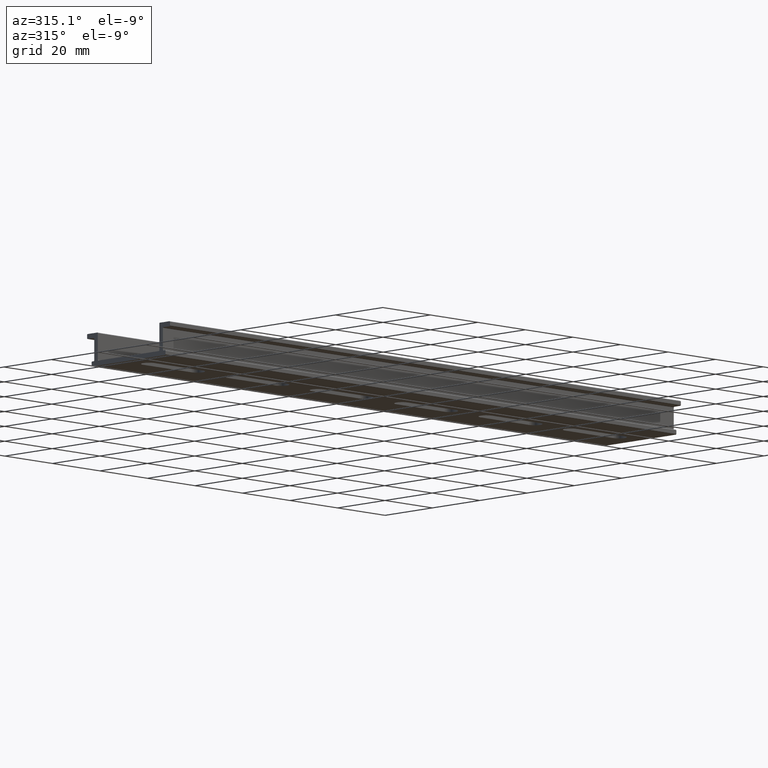
[diagram: clean part render]
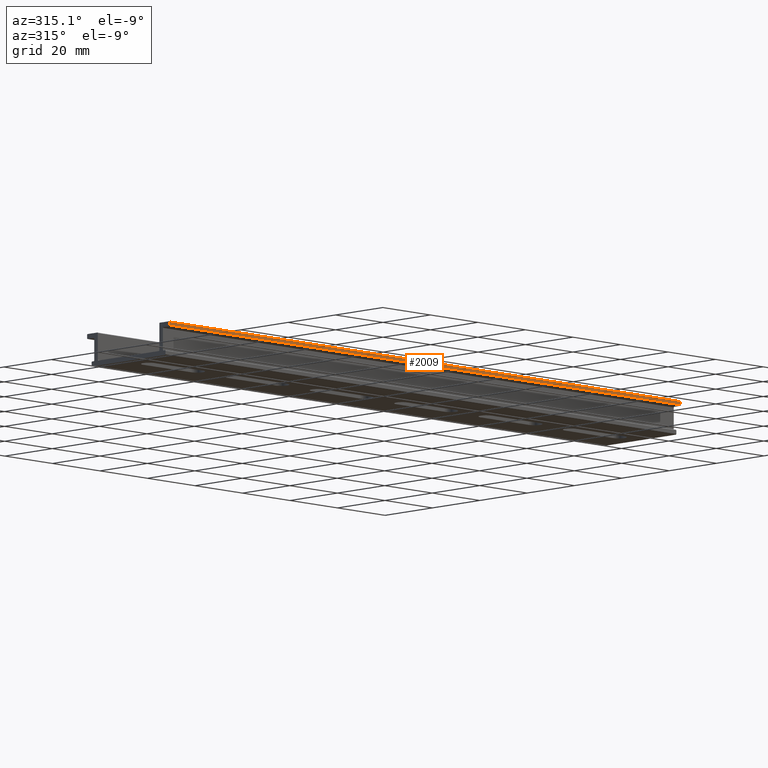
[diagram: same view with one face highlighted and labeled with its STEP entity id]
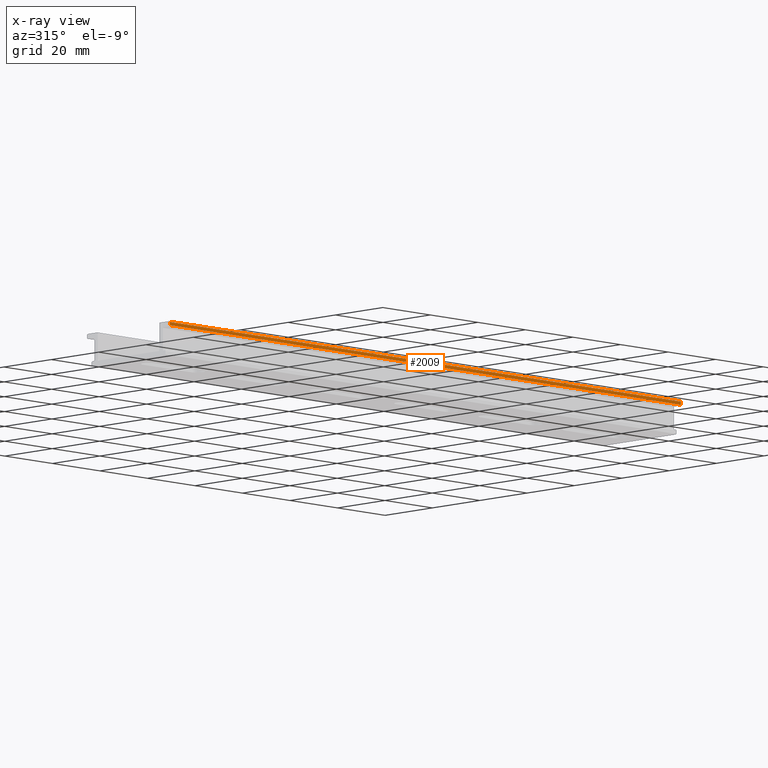
[diagram: x-ray of the same camera — body ghosted, the highlighted face saturated]
A machine part, auxiliary view. The second image highlights one B-rep face of the part: STEP entity #2009.
The next image is the same camera in x-ray: the body ghosted, the highlighted face saturated — about 0% of this face is hidden behind the body in this view.
In plain terms, the highlighted planar face has unit normal (-0, 1, 0).
Its self-contained STEP definition (entity closure, byte-faithful):
#96 = CARTESIAN_POINT ( 'NONE',  ( 107.5000000000000000, -17.50000000000000000, 3.768042931760634762 ) ) ;
#113 = LINE ( 'NONE', #286, #1173 ) ;
#116 = FACE_OUTER_BOUND ( 'NONE', #876, .T. ) ;
#123 = DIRECTION ( 'NONE',  ( -1.000000000000000000, -0.000000000000000000, -0.000000000000000000 ) ) ;
#200 = VECTOR ( 'NONE', #1145, 1000.000000000000000 ) ;
#266 = DIRECTION ( 'NONE',  ( -0.000000000000000000, 1.000000000000000000, 0.000000000000000000 ) ) ;
#286 = CARTESIAN_POINT ( 'NONE',  ( 107.5000000000000000, -17.50000000000000000, 4.731957068239239561 ) ) ;
#590 = DIRECTION ( 'NONE',  ( 0.000000000000000000, -0.000000000000000000, 1.000000000000000000 ) ) ;
#602 = ORIENTED_EDGE ( 'NONE', *, *, #1520, .F. ) ;
#824 = ORIENTED_EDGE ( 'NONE', *, *, #1623, .T. ) ;
#876 = EDGE_LOOP ( 'NONE', ( #1336, #1632, #602, #824 ) ) ;
#895 = LINE ( 'NONE', #1523, #1740 ) ;
#905 = CARTESIAN_POINT ( 'NONE',  ( 107.5000000000000000, -17.50000000000000000, 4.731957068239239561 ) ) ;
#934 = CARTESIAN_POINT ( 'NONE',  ( 107.5000000000000000, -17.50000000000000000, 3.768042931760634762 ) ) ;
#951 = AXIS2_PLACEMENT_3D ( 'NONE', #1360, #266, #590 ) ;
#969 = VERTEX_POINT ( 'NONE', #934 ) ;
#989 = CARTESIAN_POINT ( 'NONE',  ( -107.5000000000000000, -17.50000000000000000, 3.768042931760634762 ) ) ;
#997 = DIRECTION ( 'NONE',  ( -1.000000000000000000, -0.000000000000000000, -0.000000000000000000 ) ) ;
#1145 = DIRECTION ( 'NONE',  ( 0.000000000000000000, 0.000000000000000000, -1.000000000000000000 ) ) ;
#1170 = VERTEX_POINT ( 'NONE', #989 ) ;
#1173 = VECTOR ( 'NONE', #1232, 1000.000000000000000 ) ;
#1232 = DIRECTION ( 'NONE',  ( 0.000000000000000000, 0.000000000000000000, -1.000000000000000000 ) ) ;
#1276 = VERTEX_POINT ( 'NONE', #905 ) ;
#1336 = ORIENTED_EDGE ( 'NONE', *, *, #1850, .T. ) ;
#1340 = LINE ( 'NONE', #96, #1966 ) ;
#1360 = CARTESIAN_POINT ( 'NONE',  ( 107.5000000000000000, -17.50000000000000000, 4.731957068239239561 ) ) ;
#1520 = EDGE_CURVE ( 'NONE', #1276, #969, #113, .T. ) ;
#1523 = CARTESIAN_POINT ( 'NONE',  ( 107.5000000000000000, -17.50000000000000000, 4.731957068239239561 ) ) ;
#1529 = VERTEX_POINT ( 'NONE', #1707 ) ;
#1623 = EDGE_CURVE ( 'NONE', #1276, #1529, #895, .T. ) ;
#1632 = ORIENTED_EDGE ( 'NONE', *, *, #1811, .F. ) ;
#1650 = LINE ( 'NONE', #1969, #200 ) ;
#1707 = CARTESIAN_POINT ( 'NONE',  ( -107.5000000000000000, -17.50000000000000000, 4.731957068239239561 ) ) ;
#1710 = PLANE ( 'NONE',  #951 ) ;
#1740 = VECTOR ( 'NONE', #123, 1000.000000000000000 ) ;
#1811 = EDGE_CURVE ( 'NONE', #969, #1170, #1340, .T. ) ;
#1850 = EDGE_CURVE ( 'NONE', #1529, #1170, #1650, .T. ) ;
#1966 = VECTOR ( 'NONE', #997, 1000.000000000000000 ) ;
#1969 = CARTESIAN_POINT ( 'NONE',  ( -107.5000000000000000, -17.50000000000000000, 4.731957068239239561 ) ) ;
#2009 = ADVANCED_FACE ( 'NONE', ( #116 ), #1710, .F. ) ;